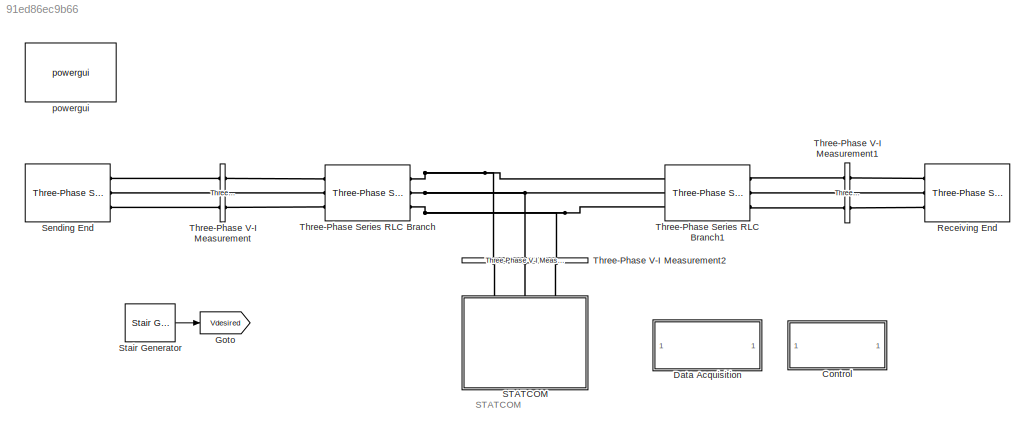
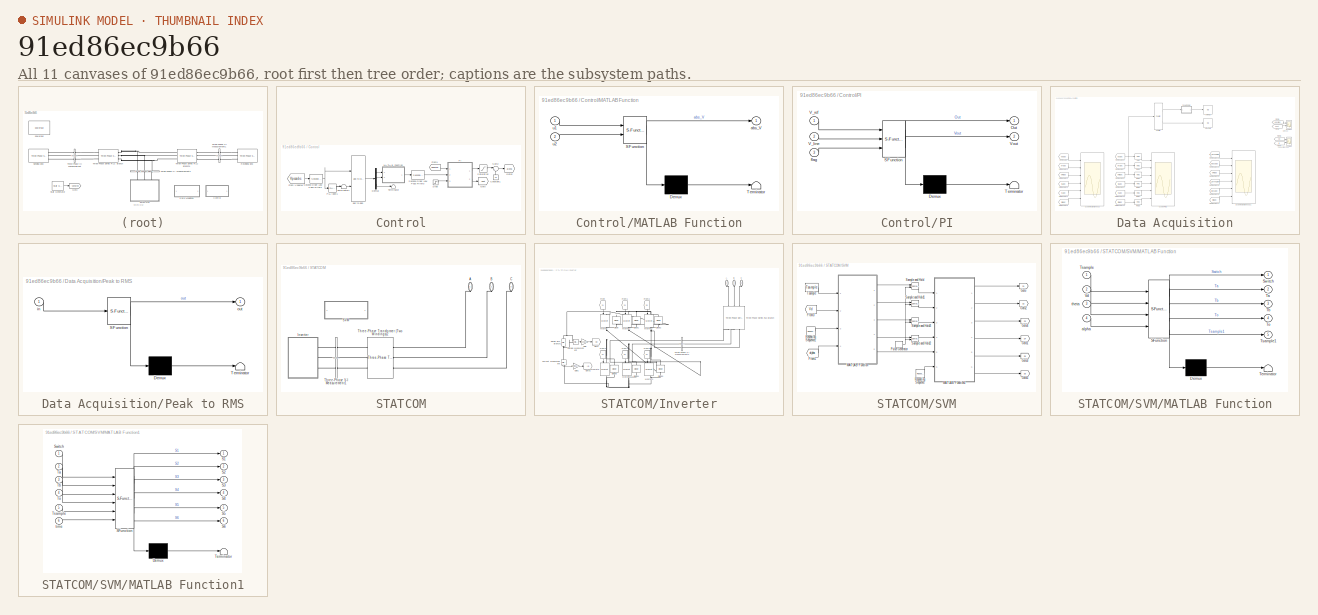
[diagram: thumbnail index - all 11 canvases of the model, root first then tree order]
MODEL slx_91ed86ec9b66
KIND model
CONFIG AbsTol = auto
CONFIG FixedStep = auto
CONFIG MaxStep = auto
CONFIG MinStep = auto
CONFIG RelTol = 1e-3
CONFIG SampleTimeConstraint = Unconstrained
CONFIG Solver = VariableStepAuto
CONFIG SolverMode = Auto
CONFIG SolverName = VariableStepAuto
CONFIG StartTime = 0.0
CONFIG StopTime = 7
BLOCK [SubSystem] Control
  Ports = []
  RequestExecContextInheritance = off
  Variant = off
BLOCK [Constant] Control/Constant1
  Value = 15
BLOCK [Demux] Control/Demux
  DisplayOption = bar
  Outputs = 3
  Ports = [1, 3]
BLOCK [From] Control/From Vsabc18
  GotoTag = Vpccabc
  TagVisibility = global
BLOCK [From] Control/From1
  GotoTag = Vdesired
  TagVisibility = global
BLOCK [Goto] Control/Goto
  GotoTag = Vout
  TagVisibility = global
BLOCK [Goto] Control/Goto2
  GotoTag = alpha
  TagVisibility = global
BLOCK [SubSystem] Control/MATLAB Function
  ErrorFcn = Stateflow.Translate.translate
  PermitHierarchicalResolution = ExplicitOnly
  Ports = [2, 1]
  RequestExecContextInheritance = off
  SFBlockType = MATLAB Function
  TreatAsAtomicUnit = on
  Variant = off
BLOCK [Demux] Control/MATLAB Function/ Demux 
  Outputs = 1
  Ports = [1, 1]
BLOCK [S-Function] Control/MATLAB Function/ SFunction 
  EnableBusSupport = on
  FunctionName = sf_sfun
  PortCounts = [2 2]
  Ports = [2, 2]
  SFunctionDeploymentMode = off
  Tag = Stateflow S-Function Indirect 1
BLOCK [Terminator] Control/MATLAB Function/ Terminator 
BLOCK [Outport] Control/MATLAB Function/abs_V
  IconDisplay = Port number
BLOCK [Inport] Control/MATLAB Function/u1
  IconDisplay = Port number
BLOCK [Inport] Control/MATLAB Function/u2
  IconDisplay = Port number
  Port = 2
BLOCK [SubSystem] Control/PI
  ErrorFcn = Stateflow.Translate.translate
  PermitHierarchicalResolution = ExplicitOnly
  Ports = [3, 2]
  RequestExecContextInheritance = off
  SFBlockType = MATLAB Function
  TreatAsAtomicUnit = on
  Variant = off
BLOCK [Demux] Control/PI/ Demux 
  Outputs = 1
  Ports = [1, 1]
BLOCK [S-Function] Control/PI/ SFunction 
  EnableBusSupport = on
  FunctionName = sf_sfun
  PortCounts = [3 3]
  Ports = [3, 3]
  SFunctionDeploymentMode = off
  Tag = Stateflow S-Function Indirect 7
BLOCK [Terminator] Control/PI/ Terminator 
BLOCK [Outport] Control/PI/Out
  IconDisplay = Port number
BLOCK [Inport] Control/PI/V_line
  IconDisplay = Port number
  Port = 2
BLOCK [Inport] Control/PI/V_ref
  IconDisplay = Port number
BLOCK [Outport] Control/PI/Vout
  IconDisplay = Port number
  Port = 2
BLOCK [Inport] Control/PI/flag
  IconDisplay = Port number
  Port = 3
BLOCK [Reference] Control/PLL (3ph)1  REF=powerlib_meascontrol/PLL/PLL
(3ph)
  Ports = [1, 2]
  SourceBlock = powerlib_meascontrol/PLL/PLL\n(3ph)
  SourceType = PLL (3ph)
BLOCK [Saturate] Control/Saturation
  InputPortMap = u0
  LowerLimit = -15
  Ports = [1, 1]
  UpperLimit = 45
BLOCK [Reference] Control/Second-Order Low Pass Filter2  REF=powerlib_meascontrol/Filters/Second-Order
Filter
  AttributesFormatString = f0: %<Fo>
  Ports = [1, 1]
  SourceBlock = powerlib_meascontrol/Filters/Second-Order\nFilter
  SourceType = Second-Order Filter
BLOCK [Reference] Control/Second-Order Low Pass Filter3  REF=powerlib_meascontrol/Filters/Second-Order
Filter
  AttributesFormatString = f0: %<Fo>
  Ports = [1, 1]
  SourceBlock = powerlib_meascontrol/Filters/Second-Order\nFilter
  SourceType = Second-Order Filter
BLOCK [Step] Control/Step
  SampleTime = 0
  Time = 1.01/f
BLOCK [Sum] Control/Sum2
  IconShape = round
  Inputs = |++
  Ports = [2, 1]
BLOCK [Terminator] Control/Terminator
BLOCK [Terminator] Control/Terminator1
BLOCK [Reference] Control/abc to dq0  REF=powerlib_meascontrol/Transformations/abc to dq0
  Ports = [2, 1]
  SourceBlock = powerlib_meascontrol/Transformations/abc to dq0
  SourceType = abc to dq0 Transformation
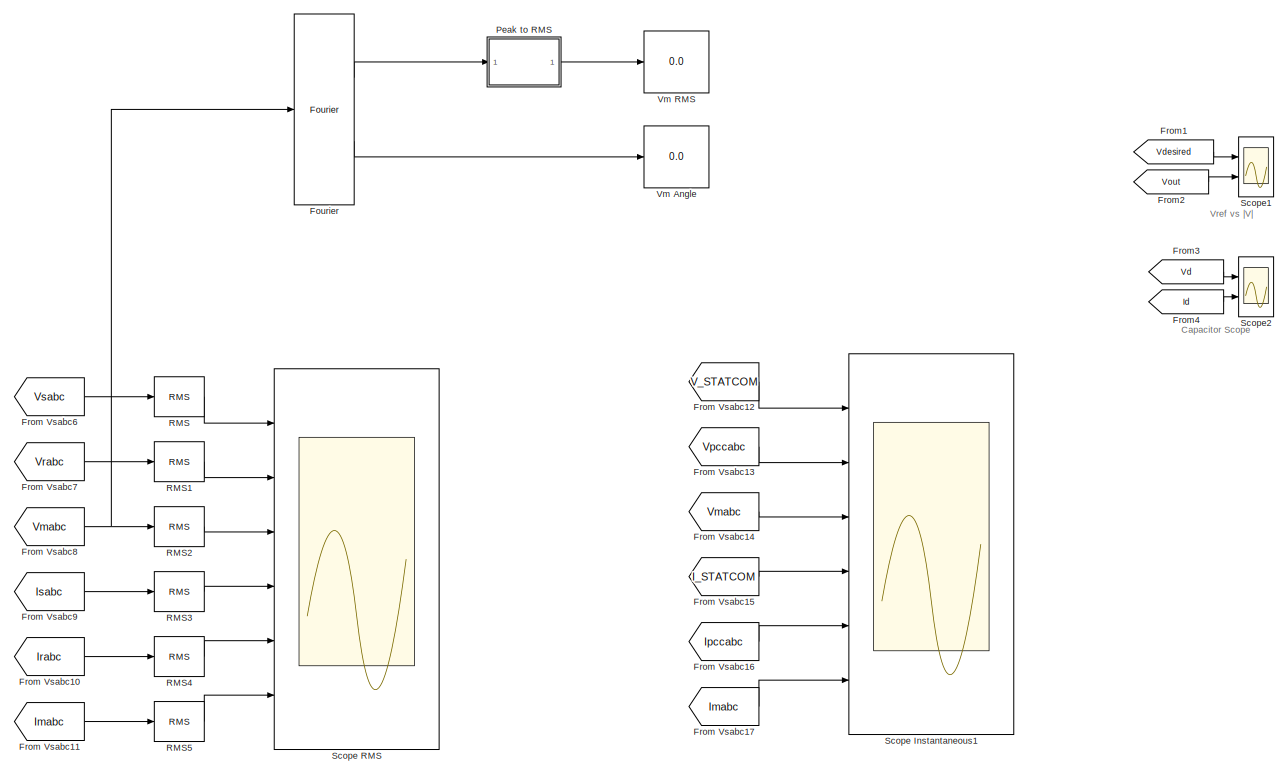
[diagram: Data Acquisition - part 1/2, most of the canvas]
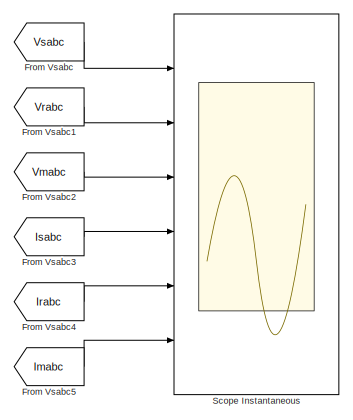
[diagram: Data Acquisition - part 2/2, bottom left region]
BLOCK [SubSystem] Data Acquisition
  Ports = []
  RequestExecContextInheritance = off
  Variant = off
BLOCK [Reference] Data Acquisition/Fourier  REF=powerlib_meascontrol/Measurements/Fourier
  Ports = [1, 2]
  SourceBlock = powerlib_meascontrol/Measurements/Fourier
  SourceType = Fourier
BLOCK [From] Data Acquisition/From Vsabc
  GotoTag = Vsabc
  TagVisibility = global
BLOCK [From] Data Acquisition/From Vsabc1
  GotoTag = Vrabc
  TagVisibility = global
BLOCK [From] Data Acquisition/From Vsabc10
  GotoTag = Irabc
  TagVisibility = global
BLOCK [From] Data Acquisition/From Vsabc11
  GotoTag = Imabc
  TagVisibility = global
BLOCK [From] Data Acquisition/From Vsabc12
  GotoTag = V_STATCOM
  TagVisibility = global
BLOCK [From] Data Acquisition/From Vsabc13
  GotoTag = Vpccabc
  TagVisibility = global
BLOCK [From] Data Acquisition/From Vsabc14
  GotoTag = Vmabc
  TagVisibility = global
BLOCK [From] Data Acquisition/From Vsabc15
  GotoTag = I_STATCOM
  TagVisibility = global
BLOCK [From] Data Acquisition/From Vsabc16
  GotoTag = Ipccabc
  TagVisibility = global
BLOCK [From] Data Acquisition/From Vsabc17
  GotoTag = Imabc
  TagVisibility = global
BLOCK [From] Data Acquisition/From Vsabc2
  GotoTag = Vmabc
  TagVisibility = global
BLOCK [From] Data Acquisition/From Vsabc3
  GotoTag = Isabc
  TagVisibility = global
BLOCK [From] Data Acquisition/From Vsabc4
  GotoTag = Irabc
  TagVisibility = global
BLOCK [From] Data Acquisition/From Vsabc5
  GotoTag = Imabc
  TagVisibility = global
BLOCK [From] Data Acquisition/From Vsabc6
  GotoTag = Vsabc
  TagVisibility = global
BLOCK [From] Data Acquisition/From Vsabc7
  GotoTag = Vrabc
  TagVisibility = global
BLOCK [From] Data Acquisition/From Vsabc8
  GotoTag = Vmabc
  TagVisibility = global
BLOCK [From] Data Acquisition/From Vsabc9
  GotoTag = Isabc
  TagVisibility = global
BLOCK [From] Data Acquisition/From1
  GotoTag = Vdesired
  TagVisibility = global
BLOCK [From] Data Acquisition/From2
  GotoTag = Vout
  TagVisibility = global
BLOCK [From] Data Acquisition/From3
  GotoTag = Vd
  TagVisibility = global
BLOCK [From] Data Acquisition/From4
  GotoTag = Id
  TagVisibility = global
BLOCK [SubSystem] Data Acquisition/Peak to RMS
  ErrorFcn = Stateflow.Translate.translate
  PermitHierarchicalResolution = ExplicitOnly
  Ports = [1, 1]
  RequestExecContextInheritance = off
  SFBlockType = MATLAB Function
  TreatAsAtomicUnit = on
  Variant = off
BLOCK [Demux] Data Acquisition/Peak to RMS/ Demux 
  Outputs = 1
  Ports = [1, 1]
BLOCK [S-Function] Data Acquisition/Peak to RMS/ SFunction 
  EnableBusSupport = on
  FunctionName = sf_sfun
  PortCounts = [1 2]
  Ports = [1, 2]
  SFunctionDeploymentMode = off
  Tag = Stateflow S-Function Indirect 2
BLOCK [Terminator] Data Acquisition/Peak to RMS/ Terminator 
BLOCK [Inport] Data Acquisition/Peak to RMS/in
  IconDisplay = Port number
BLOCK [Outport] Data Acquisition/Peak to RMS/out
  IconDisplay = Port number
BLOCK [Reference] Data Acquisition/RMS  REF=powerlib_meascontrol/Measurements/RMS
  Ports = [1, 1]
  SourceBlock = powerlib_meascontrol/Measurements/RMS
  SourceType = RMS
BLOCK [Reference] Data Acquisition/RMS1  REF=powerlib_meascontrol/Measurements/RMS
  Ports = [1, 1]
  SourceBlock = powerlib_meascontrol/Measurements/RMS
  SourceType = RMS
BLOCK [Reference] Data Acquisition/RMS2  REF=powerlib_meascontrol/Measurements/RMS
  Ports = [1, 1]
  SourceBlock = powerlib_meascontrol/Measurements/RMS
  SourceType = RMS
BLOCK [Reference] Data Acquisition/RMS3  REF=powerlib_meascontrol/Measurements/RMS
  Ports = [1, 1]
  SourceBlock = powerlib_meascontrol/Measurements/RMS
  SourceType = RMS
BLOCK [Reference] Data Acquisition/RMS4  REF=powerlib_meascontrol/Measurements/RMS
  Ports = [1, 1]
  SourceBlock = powerlib_meascontrol/Measurements/RMS
  SourceType = RMS
BLOCK [Reference] Data Acquisition/RMS5  REF=powerlib_meascontrol/Measurements/RMS
  Ports = [1, 1]
  SourceBlock = powerlib_meascontrol/Measurements/RMS
  SourceType = RMS
BLOCK [Scope] Data Acquisition/Scope Instantaneous
  NumInputPorts = 6
  Ports = [6]
  ScopeSpecificationString = Simulink.scopes.TimeScopeBlockCfg('CurrentConfiguration', extmgr.ConfigurationSet(extmgr.Configuration('Core','General UI',true),extmgr.Configuration('Core','Source UI',true),extmgr.Configuration('Sources','WiredSimulink',true),extmgr.Configuration('Visuals','Time Domain',true,'SerializedDisplays',{struct('MinYLimReal','-1.76777','MaxYLimReal','1.76777','YLabelReal','','MinYLimMag','0.00000','MaxY...<+5072ch>
BLOCK [Scope] Data Acquisition/Scope Instantaneous1
  NumInputPorts = 6
  Ports = [6]
  ScopeSpecificationString = Simulink.scopes.TimeScopeBlockCfg('CurrentConfiguration', extmgr.ConfigurationSet(extmgr.Configuration('Core','General UI',true,'FigureColor',[1 1 1]),extmgr.Configuration('Core','Source UI',true),extmgr.Configuration('Sources','WiredSimulink',true,'DataLoggingVariableName','ScopeData3'),extmgr.Configuration('Visuals','Time Domain',true,'SerializedDisplays',{struct('MinYLimReal','-0.16459','MaxYLi...<+7625ch>
BLOCK [Scope] Data Acquisition/Scope RMS
  NumInputPorts = 6
  Ports = [6]
  ScopeSpecificationString = Simulink.scopes.TimeScopeBlockCfg('CurrentConfiguration', extmgr.ConfigurationSet(extmgr.Configuration('Core','General UI',true),extmgr.Configuration('Core','Source UI',true),extmgr.Configuration('Sources','WiredSimulink',true,'DataLoggingVariableName','ScopeData1'),extmgr.Configuration('Visuals','Time Domain',true,'SerializedDisplays',{struct('MinYLimReal','-0.125','MaxYLimReal','1.12499','YLabel...<+5003ch>
BLOCK [Scope] Data Acquisition/Scope1
  NumInputPorts = 2
  Ports = [2]
  ScopeSpecificationString = Simulink.scopes.TimeScopeBlockCfg('CurrentConfiguration', extmgr.ConfigurationSet(extmgr.Configuration('Core','General UI',true,'FigureColor',[1 1 1]),extmgr.Configuration('Core','Source UI',true),extmgr.Configuration('Sources','WiredSimulink',true,'DataLoggingVariableName','ScopeData1'),extmgr.Configuration('Visuals','Time Domain',true,'SerializedDisplays',{struct('MinYLimReal','-0.01656','MaxYLi...<+1841ch>
BLOCK [Scope] Data Acquisition/Scope2
  NumInputPorts = 2
  Ports = [2]
  ScopeSpecificationString = Simulink.scopes.TimeScopeBlockCfg('CurrentConfiguration', extmgr.ConfigurationSet(extmgr.Configuration('Core','General UI',true,'FigureColor',[1 1 1]),extmgr.Configuration('Core','Source UI',true),extmgr.Configuration('Sources','WiredSimulink',true,'DataLoggingVariableName','ScopeData2'),extmgr.Configuration('Visuals','Time Domain',true,'SerializedDisplays',{struct('MinYLimReal','-0.1068','MaxYLim...<+2279ch>
BLOCK [Display] Data Acquisition/Vm Angle
  Decimation = 3
  Ports = [1]
BLOCK [Display] Data Acquisition/Vm RMS
  Decimation = 3
  Ports = [1]
BLOCK [Goto] Goto
  GotoTag = Vdesired
  TagVisibility = global
BLOCK [Reference] Receiving End  REF=powerlib/Electrical
Sources/Three-Phase Source
  Ports = [0, 0, 0, 0, 0, 0, 3]
  SourceBlock = powerlib/Electrical\nSources/Three-Phase Source
  SourceType = Three-Phase Source
BLOCK [SubSystem] STATCOM
  Ports = [0, 0, 0, 0, 0, 3]
  RequestExecContextInheritance = off
  Variant = off
BLOCK [PMIOPort] STATCOM/A
  Port = 1
  Side = Left
BLOCK [PMIOPort] STATCOM/B
  Port = 2
  Side = Left
BLOCK [PMIOPort] STATCOM/C
  Port = 3
  Side = Left
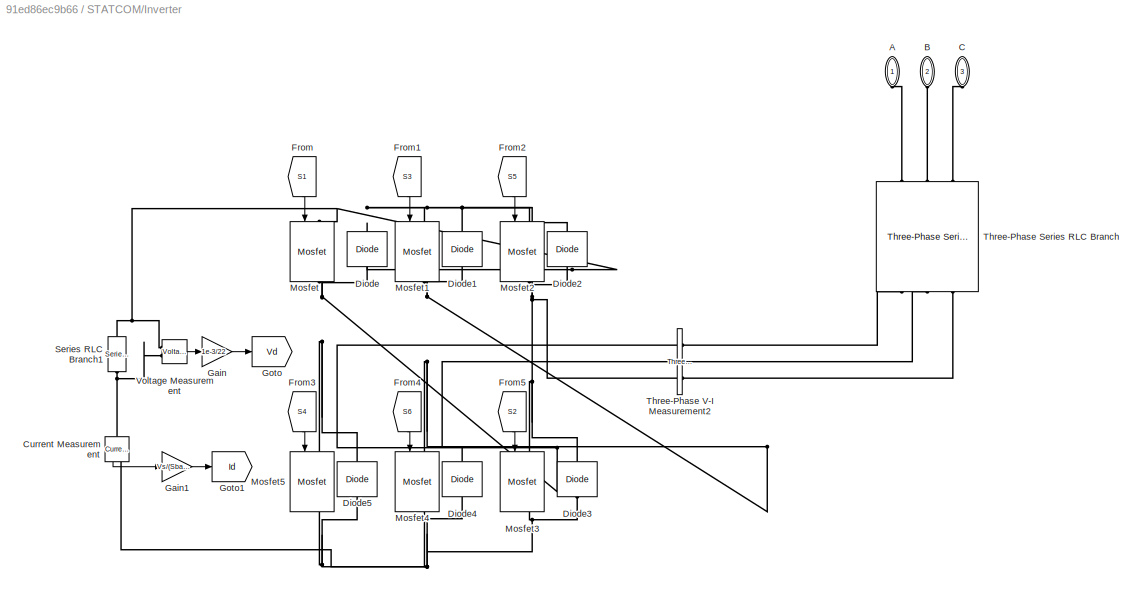
BLOCK [SubSystem] STATCOM/Inverter
  Ports = [0, 0, 0, 0, 0, 3]
  RequestExecContextInheritance = off
  Variant = off
BLOCK [PMIOPort] STATCOM/Inverter/A
  Port = 1
  Side = Left
BLOCK [PMIOPort] STATCOM/Inverter/B
  Port = 2
  Side = Left
BLOCK [PMIOPort] STATCOM/Inverter/C
  Port = 3
  Side = Left
BLOCK [Reference] STATCOM/Inverter/Current Measurement  REF=powerlib/Measurements/Current Measurement
  Ports = [0, 1, 0, 0, 0, 1, 1]
  SourceBlock = powerlib/Measurements/Current Measurement
  SourceType = Current Measurement
  UserDataPersistent = on
BLOCK [Reference] STATCOM/Inverter/Diode  REF=powerlib/Power
Electronics/Diode
  Ports = [0, 0, 0, 0, 0, 1, 1]
  SourceBlock = powerlib/Power\nElectronics/Diode
  SourceType = Diode
BLOCK [Reference] STATCOM/Inverter/Diode1  REF=powerlib/Power
Electronics/Diode
  Ports = [0, 0, 0, 0, 0, 1, 1]
  SourceBlock = powerlib/Power\nElectronics/Diode
  SourceType = Diode
BLOCK [Reference] STATCOM/Inverter/Diode2  REF=powerlib/Power
Electronics/Diode
  Ports = [0, 0, 0, 0, 0, 1, 1]
  SourceBlock = powerlib/Power\nElectronics/Diode
  SourceType = Diode
BLOCK [Reference] STATCOM/Inverter/Diode3  REF=powerlib/Power
Electronics/Diode
  Ports = [0, 0, 0, 0, 0, 1, 1]
  SourceBlock = powerlib/Power\nElectronics/Diode
  SourceType = Diode
BLOCK [Reference] STATCOM/Inverter/Diode4  REF=powerlib/Power
Electronics/Diode
  Ports = [0, 0, 0, 0, 0, 1, 1]
  SourceBlock = powerlib/Power\nElectronics/Diode
  SourceType = Diode
BLOCK [Reference] STATCOM/Inverter/Diode5  REF=powerlib/Power
Electronics/Diode
  Ports = [0, 0, 0, 0, 0, 1, 1]
  SourceBlock = powerlib/Power\nElectronics/Diode
  SourceType = Diode
BLOCK [From] STATCOM/Inverter/From
  GotoTag = S1
  TagVisibility = global
BLOCK [From] STATCOM/Inverter/From1
  GotoTag = S3
  TagVisibility = global
BLOCK [From] STATCOM/Inverter/From2
  GotoTag = S5
  TagVisibility = global
BLOCK [From] STATCOM/Inverter/From3
  GotoTag = S4
  TagVisibility = global
BLOCK [From] STATCOM/Inverter/From4
  GotoTag = S6
  TagVisibility = global
BLOCK [From] STATCOM/Inverter/From5
  GotoTag = S2
  TagVisibility = global
BLOCK [Gain] STATCOM/Inverter/Gain
  Gain = 1e-3/22
  OutDataTypeStr = Inherit: Inherit via internal rule
  ParamDataTypeStr = Inherit: Inherit via internal rule
  SaturateOnIntegerOverflow = off
BLOCK [Gain] STATCOM/Inverter/Gain1
  Gain = Vs/(Sbase*2)
  OutDataTypeStr = Inherit: Inherit via internal rule
  ParamDataTypeStr = Inherit: Inherit via internal rule
  SaturateOnIntegerOverflow = off
BLOCK [Goto] STATCOM/Inverter/Goto
  GotoTag = Vd
  TagVisibility = global
BLOCK [Goto] STATCOM/Inverter/Goto1
  GotoTag = Id
  TagVisibility = global
BLOCK [Reference] STATCOM/Inverter/Mosfet  REF=powerlib/Power
Electronics/Mosfet
  Ports = [1, 1, 0, 0, 0, 1, 1]
  SourceBlock = powerlib/Power\nElectronics/Mosfet
  SourceType = Mosfet
BLOCK [Reference] STATCOM/Inverter/Mosfet1  REF=powerlib/Power
Electronics/Mosfet
  Ports = [1, 1, 0, 0, 0, 1, 1]
  SourceBlock = powerlib/Power\nElectronics/Mosfet
  SourceType = Mosfet
BLOCK [Reference] STATCOM/Inverter/Mosfet2  REF=powerlib/Power
Electronics/Mosfet
  Ports = [1, 1, 0, 0, 0, 1, 1]
  SourceBlock = powerlib/Power\nElectronics/Mosfet
  SourceType = Mosfet
BLOCK [Reference] STATCOM/Inverter/Mosfet3  REF=powerlib/Power
Electronics/Mosfet
  Ports = [1, 1, 0, 0, 0, 1, 1]
  SourceBlock = powerlib/Power\nElectronics/Mosfet
  SourceType = Mosfet
BLOCK [Reference] STATCOM/Inverter/Mosfet4  REF=powerlib/Power
Electronics/Mosfet
  Ports = [1, 1, 0, 0, 0, 1, 1]
  SourceBlock = powerlib/Power\nElectronics/Mosfet
  SourceType = Mosfet
BLOCK [Reference] STATCOM/Inverter/Mosfet5  REF=powerlib/Power
Electronics/Mosfet
  Ports = [1, 1, 0, 0, 0, 1, 1]
  SourceBlock = powerlib/Power\nElectronics/Mosfet
  SourceType = Mosfet
BLOCK [Reference] STATCOM/Inverter/Series RLC Branch1  REF=powerlib/Elements/Series RLC Branch
  Ports = [0, 0, 0, 0, 0, 1, 1]
  SourceBlock = powerlib/Elements/Series RLC Branch
  SourceType = Series RLC Branch
BLOCK [Reference] STATCOM/Inverter/Three-Phase Series RLC Branch  REF=powerlib/Elements/Three-Phase
Series RLC Branch
  AttributesFormatString = \n
  Ports = [0, 0, 0, 0, 0, 3, 3]
  SourceBlock = powerlib/Elements/Three-Phase\nSeries RLC Branch
  SourceType = Three-Phase Series RLC Branch
BLOCK [Reference] STATCOM/Inverter/Three-Phase V-I Measurement2  REF=powerlib/Measurements/Three-Phase
V-I Measurement
  Ports = [0, 0, 0, 0, 0, 3, 3]
  SourceBlock = powerlib/Measurements/Three-Phase\nV-I Measurement
  SourceType = Three-Phase VI Measurement
BLOCK [Reference] STATCOM/Inverter/Voltage Measurement  REF=powerlib/Measurements/Voltage Measurement
  Ports = [0, 1, 0, 0, 0, 2]
  SourceBlock = powerlib/Measurements/Voltage Measurement
  SourceType = Voltage Measurement
  UserDataPersistent = on
BLOCK [SubSystem] STATCOM/SVM
  Ports = []
  RequestExecContextInheritance = off
  Variant = off
BLOCK [From] STATCOM/SVM/From1
  GotoTag = alpha
  TagVisibility = global
BLOCK [From] STATCOM/SVM/From3
  GotoTag = Vd
  TagVisibility = global
BLOCK [Goto] STATCOM/SVM/Goto
  GotoTag = S1
  TagVisibility = global
BLOCK [Goto] STATCOM/SVM/Goto1
  GotoTag = S4
  TagVisibility = global
BLOCK [Goto] STATCOM/SVM/Goto2
  GotoTag = S2
  TagVisibility = global
BLOCK [Goto] STATCOM/SVM/Goto3
  GotoTag = S5
  TagVisibility = global
BLOCK [Goto] STATCOM/SVM/Goto4
  GotoTag = S3
  TagVisibility = global
BLOCK [Goto] STATCOM/SVM/Goto5
  GotoTag = S6
  TagVisibility = global
BLOCK [SubSystem] STATCOM/SVM/MATLAB Function
  ErrorFcn = Stateflow.Translate.translate
  PermitHierarchicalResolution = ExplicitOnly
  Ports = [4, 5]
  RequestExecContextInheritance = off
  SFBlockType = MATLAB Function
  TreatAsAtomicUnit = on
  Variant = off
BLOCK [Demux] STATCOM/SVM/MATLAB Function/ Demux 
  Outputs = 1
  Ports = [1, 1]
BLOCK [S-Function] STATCOM/SVM/MATLAB Function/ SFunction 
  EnableBusSupport = on
  FunctionName = sf_sfun
  PortCounts = [4 6]
  Ports = [4, 6]
  SFunctionDeploymentMode = off
  Tag = Stateflow S-Function Indirect 5
BLOCK [Terminator] STATCOM/SVM/MATLAB Function/ Terminator 
BLOCK [Outport] STATCOM/SVM/MATLAB Function/Switch
  IconDisplay = Port number
BLOCK [Outport] STATCOM/SVM/MATLAB Function/Ta
  IconDisplay = Port number
  Port = 2
BLOCK [Outport] STATCOM/SVM/MATLAB Function/Tb
  IconDisplay = Port number
  Port = 3
BLOCK [Outport] STATCOM/SVM/MATLAB Function/To
  IconDisplay = Port number
  Port = 4
BLOCK [Inport] STATCOM/SVM/MATLAB Function/Tsample
  IconDisplay = Port number
BLOCK [Outport] STATCOM/SVM/MATLAB Function/Tsample1
  IconDisplay = Port number
  Port = 5
BLOCK [Inport] STATCOM/SVM/MATLAB Function/Vd
  IconDisplay = Port number
  Port = 2
BLOCK [Inport] STATCOM/SVM/MATLAB Function/alpha
  IconDisplay = Port number
  Port = 4
BLOCK [Inport] STATCOM/SVM/MATLAB Function/theta
  IconDisplay = Port number
  Port = 3
BLOCK [SubSystem] STATCOM/SVM/MATLAB Function1
  ErrorFcn = Stateflow.Translate.translate
  PermitHierarchicalResolution = ExplicitOnly
  Ports = [6, 6]
  RequestExecContextInheritance = off
  SFBlockType = MATLAB Function
  TreatAsAtomicUnit = on
  Variant = off
BLOCK [Demux] STATCOM/SVM/MATLAB Function1/ Demux 
  Outputs = 1
  Ports = [1, 1]
BLOCK [S-Function] STATCOM/SVM/MATLAB Function1/ SFunction 
  EnableBusSupport = on
  FunctionName = sf_sfun
  PortCounts = [6 7]
  Ports = [6, 7]
  SFunctionDeploymentMode = off
  Tag = Stateflow S-Function Indirect 6
BLOCK [Terminator] STATCOM/SVM/MATLAB Function1/ Terminator 
BLOCK [Outport] STATCOM/SVM/MATLAB Function1/S1
  IconDisplay = Port number
BLOCK [Outport] STATCOM/SVM/MATLAB Function1/S2
  IconDisplay = Port number
  Port = 2
BLOCK [Outport] STATCOM/SVM/MATLAB Function1/S3
  IconDisplay = Port number
  Port = 3
BLOCK [Outport] STATCOM/SVM/MATLAB Function1/S4
  IconDisplay = Port number
  Port = 4
BLOCK [Outport] STATCOM/SVM/MATLAB Function1/S5
  IconDisplay = Port number
  Port = 5
BLOCK [Outport] STATCOM/SVM/MATLAB Function1/S6
  IconDisplay = Port number
  Port = 6
BLOCK [Inport] STATCOM/SVM/MATLAB Function1/Switch
  IconDisplay = Port number
BLOCK [Inport] STATCOM/SVM/MATLAB Function1/Ta
  IconDisplay = Port number
  Port = 2
BLOCK [Inport] STATCOM/SVM/MATLAB Function1/Tb
  IconDisplay = Port number
  Port = 3
BLOCK [Inport] STATCOM/SVM/MATLAB Function1/To
  IconDisplay = Port number
  Port = 4
BLOCK [Inport] STATCOM/SVM/MATLAB Function1/Tsample
  IconDisplay = Port number
  Port = 5
BLOCK [Inport] STATCOM/SVM/MATLAB Function1/time
  IconDisplay = Port number
  Port = 6
BLOCK [DiscretePulseGenerator] STATCOM/SVM/Pulse Generator
  Period = Tsample
  Ports = [0, 1]
  PulseType = Time based
  PulseWidth = .1
BLOCK [Reference] STATCOM/SVM/Repeating Sequence  REF=simulink/Sources/Repeating
Sequence
  Ports = [0, 1]
  SourceBlock = simulink/Sources/Repeating\nSequence
  SourceType = Repeating table
BLOCK [Reference] STATCOM/SVM/Repeating Sequence2  REF=simulink/Sources/Repeating
Sequence
  Ports = [0, 1]
  SourceBlock = simulink/Sources/Repeating\nSequence
  SourceType = Repeating table
BLOCK [Reference] STATCOM/SVM/Sample and Hold  REF=powerlib_meascontrol/Additional Components/Sample and
Hold
  Ports = [2, 1]
  SourceBlock = powerlib_meascontrol/Additional Components/Sample and\nHold
  SourceType = Sample and Hold
BLOCK [Reference] STATCOM/SVM/Sample and Hold1  REF=powerlib_meascontrol/Additional Components/Sample and
Hold
  Ports = [2, 1]
  SourceBlock = powerlib_meascontrol/Additional Components/Sample and\nHold
  SourceType = Sample and Hold
BLOCK [Reference] STATCOM/SVM/Sample and Hold2  REF=powerlib_meascontrol/Additional Components/Sample and
Hold
  Ports = [2, 1]
  SourceBlock = powerlib_meascontrol/Additional Components/Sample and\nHold
  SourceType = Sample and Hold
BLOCK [Reference] STATCOM/SVM/Sample and Hold3  REF=powerlib_meascontrol/Additional Components/Sample and
Hold
  Ports = [2, 1]
  SourceBlock = powerlib_meascontrol/Additional Components/Sample and\nHold
  SourceType = Sample and Hold
BLOCK [Constant] STATCOM/SVM/Tsample
  Value = Tsample
BLOCK [Reference] STATCOM/Three-Phase Transformer (Two Windings)2  REF=powerlib/Elements/Three-Phase
Transformer
(Two Windings)
  Ports = [0, 0, 0, 0, 0, 3, 3]
  SourceBlock = powerlib/Elements/Three-Phase\nTransformer\n(Two Windings)
  SourceType = Three-Phase Transformer (Two Windings)
BLOCK [Reference] STATCOM/Three-Phase V-I Measurement1  REF=powerlib/Measurements/Three-Phase
V-I Measurement
  Ports = [0, 0, 0, 0, 0, 3, 3]
  SourceBlock = powerlib/Measurements/Three-Phase\nV-I Measurement
  SourceType = Three-Phase VI Measurement
BLOCK [Reference] Sending End  REF=powerlib/Electrical
Sources/Three-Phase Source
  Ports = [0, 0, 0, 0, 0, 0, 3]
  SourceBlock = powerlib/Electrical\nSources/Three-Phase Source
  SourceType = Three-Phase Source
BLOCK [Reference] Stair Generator  REF=powerlib_meascontrol/Pulse & Signal
Generators/Stair
Generator
  Ports = [0, 1]
  SourceBlock = powerlib_meascontrol/Pulse & Signal\nGenerators/Stair\nGenerator
  SourceType = Stair Generator
BLOCK [Reference] Three-Phase Series RLC Branch  REF=powerlib/Elements/Three-Phase
Series RLC Branch
  AttributesFormatString = \n
  Ports = [0, 0, 0, 0, 0, 3, 3]
  SourceBlock = powerlib/Elements/Three-Phase\nSeries RLC Branch
  SourceType = Three-Phase Series RLC Branch
BLOCK [Reference] Three-Phase Series RLC Branch1  REF=powerlib/Elements/Three-Phase
Series RLC Branch
  AttributesFormatString = \n
  Ports = [0, 0, 0, 0, 0, 3, 3]
  SourceBlock = powerlib/Elements/Three-Phase\nSeries RLC Branch
  SourceType = Three-Phase Series RLC Branch
BLOCK [Reference] Three-Phase V-I Measurement  REF=powerlib/Measurements/Three-Phase
V-I Measurement
  Ports = [0, 0, 0, 0, 0, 3, 3]
  SourceBlock = powerlib/Measurements/Three-Phase\nV-I Measurement
  SourceType = Three-Phase VI Measurement
BLOCK [Reference] Three-Phase V-I Measurement1  REF=powerlib/Measurements/Three-Phase
V-I Measurement
  Ports = [0, 0, 0, 0, 0, 3, 3]
  SourceBlock = powerlib/Measurements/Three-Phase\nV-I Measurement
  SourceType = Three-Phase VI Measurement
BLOCK [Reference] Three-Phase V-I Measurement2  REF=powerlib/Measurements/Three-Phase
V-I Measurement
  Ports = [0, 0, 0, 0, 0, 3, 3]
  SourceBlock = powerlib/Measurements/Three-Phase\nV-I Measurement
  SourceType = Three-Phase VI Measurement
BLOCK [Reference] powergui  REF=powerlib/powergui
  Ports = []
  Priority = 1
  SourceBlock = powerlib/powergui
  SourceType = PSB option menu block
  UserDataPersistent = on
ANNOTATION (root): STATCOM
ANNOTATION Data Acquisition: Capacitor Scope
ANNOTATION Data Acquisition: Vref vs |V|
LINE Control/Constant1:1 -> Control/Sum2:2
LINE Control/Demux:1 -> Control/MATLAB Function:1
LINE Control/Demux:2 -> Control/MATLAB Function:2
LINE Control/Demux:3 -> Control/Terminator:1
LINE Control/From Vsabc18:1 -> Control/Second-Order Low Pass Filter2:1
LINE Control/From1:1 -> Control/PI:1
LINE Control/MATLAB Function:1 -> Control/Second-Order Low Pass Filter3:1
LINE Control/PI:1 -> Control/Saturation:1
LINE Control/PI:2 -> Control/Goto:1
LINE Control/PLL (3ph)1:1 -> Control/Terminator1:1
LINE Control/PLL (3ph)1:2 -> Control/abc to dq0:2
LINE Control/Saturation:1 -> Control/Sum2:1
NET Control/Second-Order Low Pass Filter2:1 -> Control/PLL (3ph)1:1, Control/abc to dq0:1
LINE Control/Second-Order Low Pass Filter3:1 -> Control/PI:2
LINE Control/Step:1 -> Control/PI:3
LINE Control/Sum2:1 -> Control/Goto2:1
LINE Control/abc to dq0:1 -> Control/Demux:1
LINE Data Acquisition/Fourier:1 -> Data Acquisition/Peak to RMS:1
LINE Data Acquisition/Fourier:2 -> Data Acquisition/Vm Angle:1
LINE Data Acquisition/From Vsabc10:1 -> Data Acquisition/RMS4:1
LINE Data Acquisition/From Vsabc11:1 -> Data Acquisition/RMS5:1
LINE Data Acquisition/From Vsabc12:1 -> Data Acquisition/Scope Instantaneous1:1
LINE Data Acquisition/From Vsabc13:1 -> Data Acquisition/Scope Instantaneous1:2
LINE Data Acquisition/From Vsabc14:1 -> Data Acquisition/Scope Instantaneous1:3
LINE Data Acquisition/From Vsabc15:1 -> Data Acquisition/Scope Instantaneous1:4
LINE Data Acquisition/From Vsabc16:1 -> Data Acquisition/Scope Instantaneous1:5
LINE Data Acquisition/From Vsabc17:1 -> Data Acquisition/Scope Instantaneous1:6
LINE Data Acquisition/From Vsabc1:1 -> Data Acquisition/Scope Instantaneous:2
LINE Data Acquisition/From Vsabc2:1 -> Data Acquisition/Scope Instantaneous:3
LINE Data Acquisition/From Vsabc3:1 -> Data Acquisition/Scope Instantaneous:4
LINE Data Acquisition/From Vsabc4:1 -> Data Acquisition/Scope Instantaneous:5
LINE Data Acquisition/From Vsabc5:1 -> Data Acquisition/Scope Instantaneous:6
LINE Data Acquisition/From Vsabc6:1 -> Data Acquisition/RMS:1
LINE Data Acquisition/From Vsabc7:1 -> Data Acquisition/RMS1:1
NET Data Acquisition/From Vsabc8:1 -> Data Acquisition/Fourier:1, Data Acquisition/RMS2:1
LINE Data Acquisition/From Vsabc9:1 -> Data Acquisition/RMS3:1
LINE Data Acquisition/From Vsabc:1 -> Data Acquisition/Scope Instantaneous:1
LINE Data Acquisition/From1:1 -> Data Acquisition/Scope1:1
LINE Data Acquisition/From2:1 -> Data Acquisition/Scope1:2
LINE Data Acquisition/From3:1 -> Data Acquisition/Scope2:1
LINE Data Acquisition/From4:1 -> Data Acquisition/Scope2:2
LINE Data Acquisition/Peak to RMS:1 -> Data Acquisition/Vm RMS:1
LINE Data Acquisition/RMS1:1 -> Data Acquisition/Scope RMS:2
LINE Data Acquisition/RMS2:1 -> Data Acquisition/Scope RMS:3
LINE Data Acquisition/RMS3:1 -> Data Acquisition/Scope RMS:4
LINE Data Acquisition/RMS4:1 -> Data Acquisition/Scope RMS:5
LINE Data Acquisition/RMS5:1 -> Data Acquisition/Scope RMS:6
LINE Data Acquisition/RMS:1 -> Data Acquisition/Scope RMS:1
LINE STATCOM/Inverter/Current Measurement:1 -> STATCOM/Inverter/Gain1:1
LINE STATCOM/Inverter/From1:1 -> STATCOM/Inverter/Mosfet1:1
LINE STATCOM/Inverter/From2:1 -> STATCOM/Inverter/Mosfet2:1
LINE STATCOM/Inverter/From3:1 -> STATCOM/Inverter/Mosfet5:1
LINE STATCOM/Inverter/From4:1 -> STATCOM/Inverter/Mosfet4:1
LINE STATCOM/Inverter/From5:1 -> STATCOM/Inverter/Mosfet3:1
LINE STATCOM/Inverter/From:1 -> STATCOM/Inverter/Mosfet:1
LINE STATCOM/Inverter/Gain1:1 -> STATCOM/Inverter/Goto1:1
LINE STATCOM/Inverter/Gain:1 -> STATCOM/Inverter/Goto:1
LINE STATCOM/Inverter/Voltage Measurement:1 -> STATCOM/Inverter/Gain:1
LINE STATCOM/SVM/From1:1 -> STATCOM/SVM/MATLAB Function:4
LINE STATCOM/SVM/From3:1 -> STATCOM/SVM/MATLAB Function:2
LINE STATCOM/SVM/MATLAB Function1:1 -> STATCOM/SVM/Goto:1
LINE STATCOM/SVM/MATLAB Function1:2 -> STATCOM/SVM/Goto2:1
LINE STATCOM/SVM/MATLAB Function1:3 -> STATCOM/SVM/Goto4:1
LINE STATCOM/SVM/MATLAB Function1:4 -> STATCOM/SVM/Goto1:1
LINE STATCOM/SVM/MATLAB Function1:5 -> STATCOM/SVM/Goto3:1
LINE STATCOM/SVM/MATLAB Function1:6 -> STATCOM/SVM/Goto5:1
LINE STATCOM/SVM/MATLAB Function:1 -> STATCOM/SVM/Sample and Hold:1
LINE STATCOM/SVM/MATLAB Function:2 -> STATCOM/SVM/Sample and Hold1:1
LINE STATCOM/SVM/MATLAB Function:3 -> STATCOM/SVM/Sample and Hold3:1
LINE STATCOM/SVM/MATLAB Function:4 -> STATCOM/SVM/Sample and Hold2:1
LINE STATCOM/SVM/MATLAB Function:5 -> STATCOM/SVM/MATLAB Function1:5
NET STATCOM/SVM/Pulse Generator:1 -> STATCOM/SVM/Sample and Hold1:2, STATCOM/SVM/Sample and Hold2:2, STATCOM/SVM/Sample and Hold3:2, STATCOM/SVM/Sample and Hold:2
LINE STATCOM/SVM/Repeating Sequence2:1 -> STATCOM/SVM/MATLAB Function:3
LINE STATCOM/SVM/Repeating Sequence:1 -> STATCOM/SVM/MATLAB Function1:6
LINE STATCOM/SVM/Sample and Hold1:1 -> STATCOM/SVM/MATLAB Function1:2
LINE STATCOM/SVM/Sample and Hold2:1 -> STATCOM/SVM/MATLAB Function1:4
LINE STATCOM/SVM/Sample and Hold3:1 -> STATCOM/SVM/MATLAB Function1:3
LINE STATCOM/SVM/Sample and Hold:1 -> STATCOM/SVM/MATLAB Function1:1
LINE STATCOM/SVM/Tsample:1 -> STATCOM/SVM/MATLAB Function:1
LINE Stair Generator:1 -> Goto:1
PLINE Receiving End:RConn1 -- Three-Phase V-I Measurement1:LConn1
PLINE Receiving End:RConn2 -- Three-Phase V-I Measurement1:LConn2
PLINE Receiving End:RConn3 -- Three-Phase V-I Measurement1:LConn3
PLINE STATCOM/A:RConn1 -- STATCOM/Three-Phase Transformer (Two Windings)2:LConn1
PLINE STATCOM/B:RConn1 -- STATCOM/Three-Phase Transformer (Two Windings)2:LConn2
PLINE STATCOM/C:RConn1 -- STATCOM/Three-Phase Transformer (Two Windings)2:LConn3
PLINE STATCOM/Inverter/A:RConn1 -- STATCOM/Inverter/Three-Phase Series RLC Branch:LConn1
PLINE STATCOM/Inverter/B:RConn1 -- STATCOM/Inverter/Three-Phase Series RLC Branch:LConn2
PLINE STATCOM/Inverter/C:RConn1 -- STATCOM/Inverter/Three-Phase Series RLC Branch:LConn3
PNET net1: STATCOM/Inverter/Current Measurement:LConn1 -- STATCOM/Inverter/Series RLC Branch1:RConn1 -- STATCOM/Inverter/Voltage Measurement:LConn2
PNET net2: STATCOM/Inverter/Current Measurement:RConn1 -- STATCOM/Inverter/Diode3:LConn1 -- STATCOM/Inverter/Diode4:LConn1 -- STATCOM/Inverter/Diode5:LConn1 -- STATCOM/Inverter/Mosfet3:RConn1 -- STATCOM/Inverter/Mosfet4:RConn1 -- STATCOM/Inverter/Mosfet5:RConn1
PNET net3: STATCOM/Inverter/Diode1:LConn1 -- STATCOM/Inverter/Diode4:RConn1 -- STATCOM/Inverter/Mosfet1:RConn1 -- STATCOM/Inverter/Mosfet4:LConn1 -- STATCOM/Inverter/Three-Phase V-I Measurement2:LConn2
PNET net4: STATCOM/Inverter/Diode1:RConn1 -- STATCOM/Inverter/Diode2:RConn1 -- STATCOM/Inverter/Diode:RConn1 -- STATCOM/Inverter/Mosfet1:LConn1 -- STATCOM/Inverter/Mosfet2:LConn1 -- STATCOM/Inverter/Mosfet:LConn1 -- STATCOM/Inverter/Series RLC Branch1:LConn1 -- STATCOM/Inverter/Voltage Measurement:LConn1
PNET net5: STATCOM/Inverter/Diode2:LConn1 -- STATCOM/Inverter/Diode3:RConn1 -- STATCOM/Inverter/Mosfet2:RConn1 -- STATCOM/Inverter/Mosfet3:LConn1 -- STATCOM/Inverter/Three-Phase V-I Measurement2:LConn3
PNET net6: STATCOM/Inverter/Diode5:RConn1 -- STATCOM/Inverter/Diode:LConn1 -- STATCOM/Inverter/Mosfet5:LConn1 -- STATCOM/Inverter/Mosfet:RConn1 -- STATCOM/Inverter/Three-Phase V-I Measurement2:LConn1
PLINE STATCOM/Inverter/Three-Phase Series RLC Branch:RConn1 -- STATCOM/Inverter/Three-Phase V-I Measurement2:RConn1
PLINE STATCOM/Inverter/Three-Phase Series RLC Branch:RConn2 -- STATCOM/Inverter/Three-Phase V-I Measurement2:RConn2
PLINE STATCOM/Inverter/Three-Phase Series RLC Branch:RConn3 -- STATCOM/Inverter/Three-Phase V-I Measurement2:RConn3
PLINE STATCOM/Inverter:LConn1 -- STATCOM/Three-Phase V-I Measurement1:LConn1
PLINE STATCOM/Inverter:LConn2 -- STATCOM/Three-Phase V-I Measurement1:LConn2
PLINE STATCOM/Inverter:LConn3 -- STATCOM/Three-Phase V-I Measurement1:LConn3
PLINE STATCOM/Three-Phase Transformer (Two Windings)2:RConn1 -- STATCOM/Three-Phase V-I Measurement1:RConn1
PLINE STATCOM/Three-Phase Transformer (Two Windings)2:RConn2 -- STATCOM/Three-Phase V-I Measurement1:RConn2
PLINE STATCOM/Three-Phase Transformer (Two Windings)2:RConn3 -- STATCOM/Three-Phase V-I Measurement1:RConn3
PLINE STATCOM:LConn1 -- Three-Phase V-I Measurement2:LConn1
PLINE STATCOM:LConn2 -- Three-Phase V-I Measurement2:LConn2
PLINE STATCOM:LConn3 -- Three-Phase V-I Measurement2:LConn3
PLINE Sending End:RConn1 -- Three-Phase V-I Measurement:LConn1
PLINE Sending End:RConn2 -- Three-Phase V-I Measurement:LConn2
PLINE Sending End:RConn3 -- Three-Phase V-I Measurement:LConn3
PLINE Three-Phase Series RLC Branch1:LConn1 -- Three-Phase V-I Measurement1:RConn1
PLINE Three-Phase Series RLC Branch1:LConn2 -- Three-Phase V-I Measurement1:RConn2
PLINE Three-Phase Series RLC Branch1:LConn3 -- Three-Phase V-I Measurement1:RConn3
PNET net7: Three-Phase Series RLC Branch1:RConn1 -- Three-Phase Series RLC Branch:RConn1 -- Three-Phase V-I Measurement2:RConn1
PNET net8: Three-Phase Series RLC Branch1:RConn2 -- Three-Phase Series RLC Branch:RConn2 -- Three-Phase V-I Measurement2:RConn2
PNET net9: Three-Phase Series RLC Branch1:RConn3 -- Three-Phase Series RLC Branch:RConn3 -- Three-Phase V-I Measurement2:RConn3
PLINE Three-Phase Series RLC Branch:LConn1 -- Three-Phase V-I Measurement:RConn1
PLINE Three-Phase Series RLC Branch:LConn2 -- Three-Phase V-I Measurement:RConn2
PLINE Three-Phase Series RLC Branch:LConn3 -- Three-Phase V-I Measurement:RConn3
note: NET lines group one-source signal fan-out (src -> all destinations, sorted); 1:1 wires keep LINE; PNET lines group multi-terminal physical nets as a canonical sorted terminal list (undirected conserving connections); 2-terminal nets keep the pairwise PLINE form
CHART Control/MATLAB Function states=1 transitions=1
  STATE_LABEL 'eML_blk_kernel()'
  STATE_LABEL 'SCRIPT:\nfunction abs_V = fcn(u1,u2)\n%#codegen\nabs_V= sqrt((u1*u1+u2*u2)/2);\n'
CHART Data Acquisition/Peak to RMS states=1 transitions=1
  STATE_LABEL 'eML_blk_kernel()'
  STATE_LABEL 'SCRIPT:\nfunction out = fcn(in)\n% converts peak values to RMS values\n\nout = in/sqrt(2);'
CHART STATCOM/SVM/MATLAB Function states=1 transitions=1
  STATE_LABEL 'eML_blk_kernel()'
  STATE_LABEL 'SCRIPT:\nfunction [Switch, Ta, Tb, To, Tsample1]= fcn(Tsample,Vd, theta, alpha)\n%#codegen\nTsample1 = Tsample;\n%magnitude = abs(Vref*cosine+Vref*1i* sine);\nVref= Vd*0.5;\nTa=0; Tb=0; To=0; %Tsample= 250e-6;\n\ntheta= theta+ 3*pi/2+(pi/90)+alpha*(pi/180);\nSector=1;\nSwitch = zeros(7,3);\n\nif  theta>2*pi\n    theta = -2*pi + theta;\nend\nif  theta<0\n    theta = pi + theta;\nend\n\nif 0<theta && theta<=pi/3\n    S...<+2131ch>'
CHART STATCOM/SVM/MATLAB Function1 states=1 transitions=1
  STATE_LABEL 'eML_blk_kernel()'
  STATE_LABEL 'SCRIPT:\nfunction [S1, S2, S3, S4, S5, S6] = fcn(Switch, Ta, Tb, To, Tsample,time)\n%#codegen  To/4, Ta/2, Tb/2, T0/2, Tb/2, Ta/2, To/2.\n%Tsample= 250e-6;\nS1=0;\nS2=0;\nS3=0;\nS4=0;\nS5=0;\nS6=0;\n% if time1 > Tsample\n%     time1 = 0;\n% end\n% time= time1+ t;\nif (0< time) && (time<= To/4)\n    S1 = Switch(1,1);\n    S2 = Switch(1,2);\n    S3 = Switch(1,3);\nelseif (To/4 < time) && (time <= To/4 +  Ta/2)\n    S1...<+900ch>'
CHART Control/PI states=1 transitions=1
  STATE_LABEL 'eML_blk_kernel()'
  STATE_LABEL 'SCRIPT:\nfunction [Out,Vout] = fcn(V_ref,V_line,flag)\n%V_line=V_line/3;\nintegrator=0;\ndifferential=0;\nKp=400;\nKi=.22;\nKd=0;\n%  Kp= 750;\n% Ki= .022; %for L_STATCOM=1.3E3\n% Kd= 0.1;\npersistent error_old;\nif(isempty(error_old))\n    error_old=0;\nend \n \npersistent Vi;\nif(isempty(Vi))\n    Vi=0;\nend\npersistent Vref;\n\nif(isempty(Vref))\n    Vref=0;\nend\n\n% if(Vref~=V_ref)\n%     Vi=0; error=0;\n%     integrato...<+223ch>'
